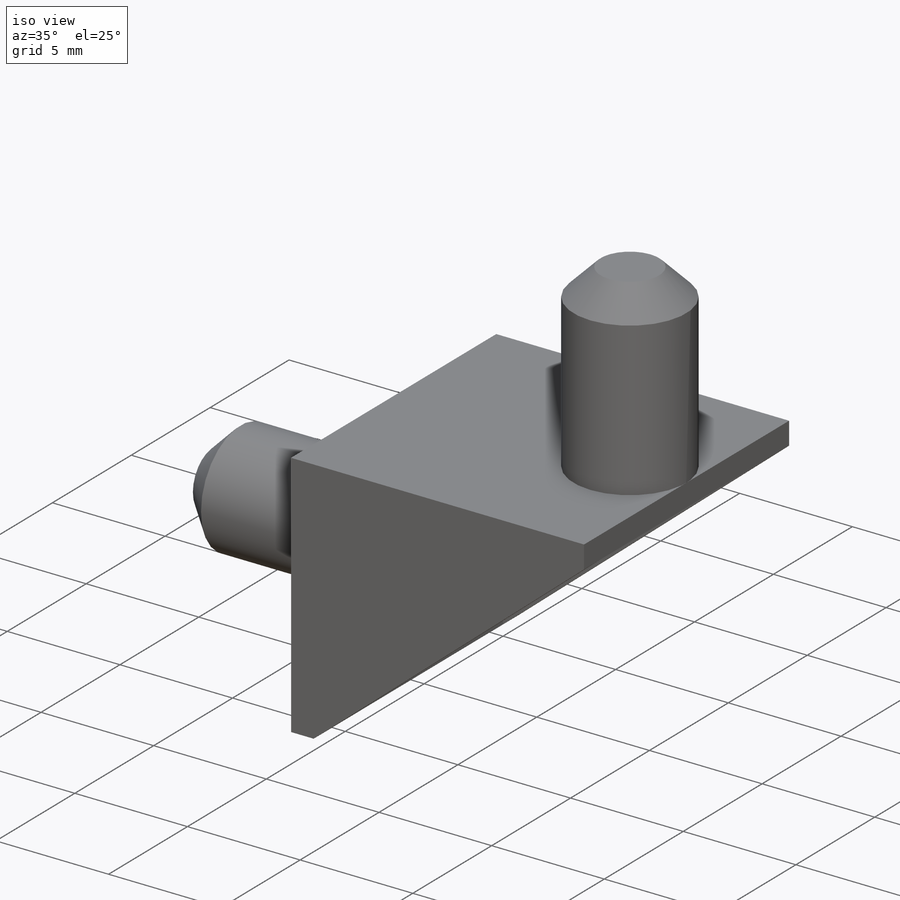
[diagram: iso view]
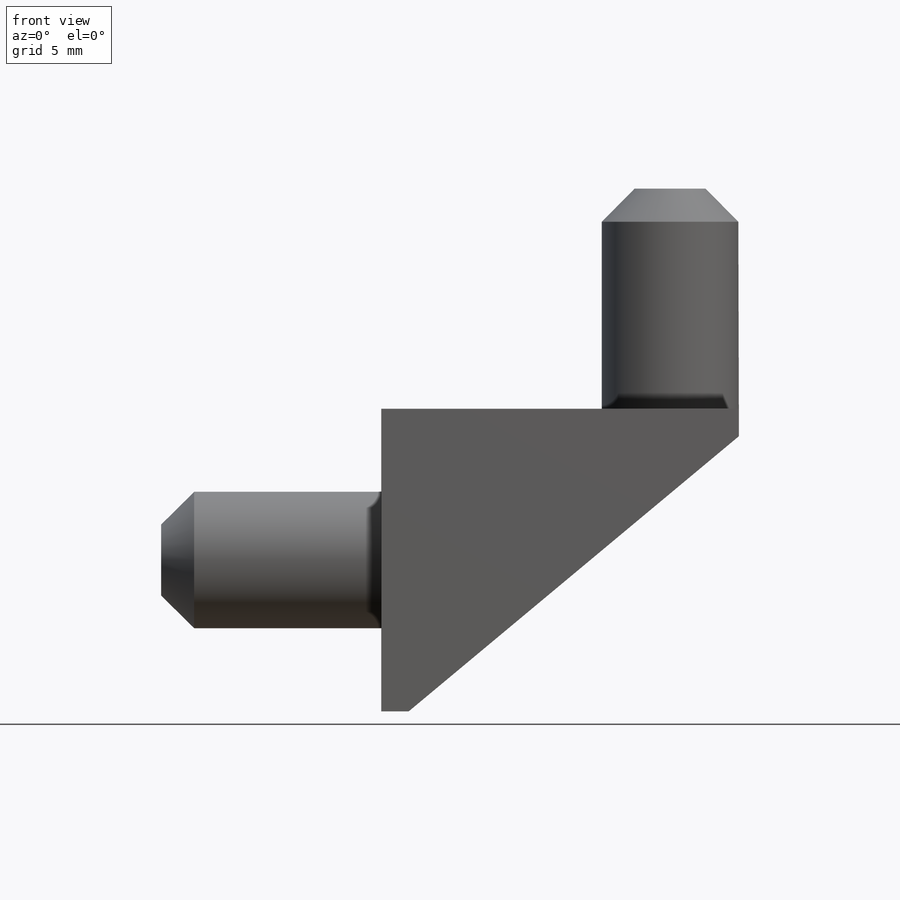
[diagram: front view]
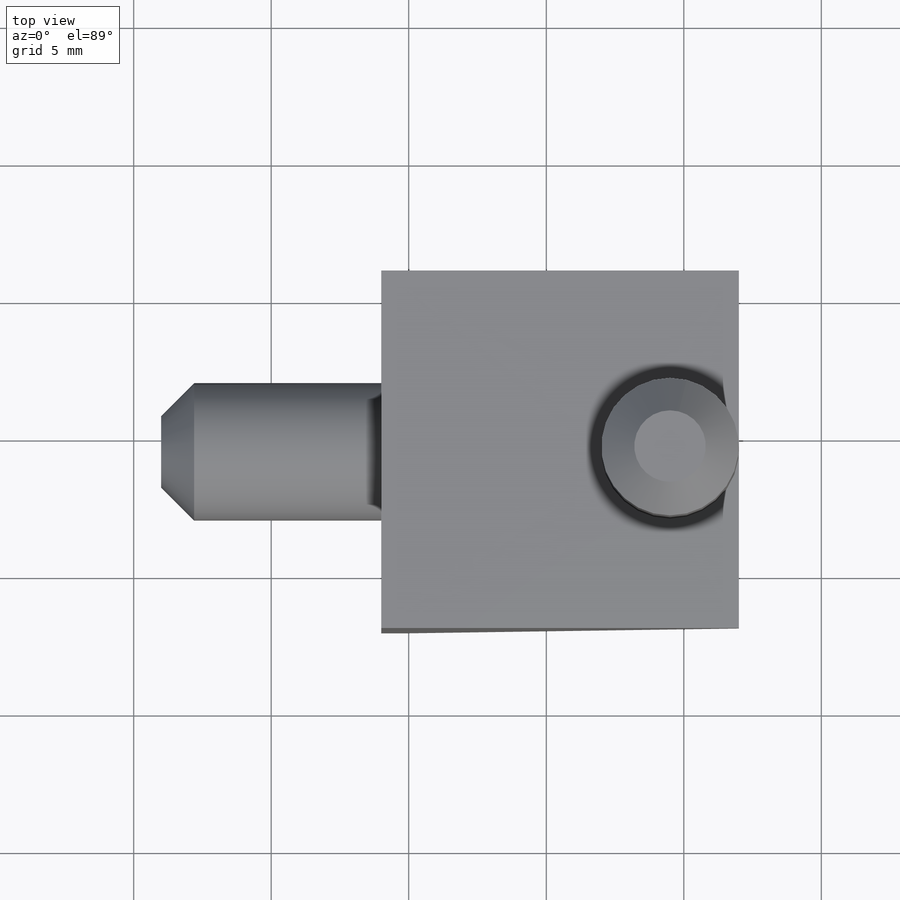
[diagram: top view]
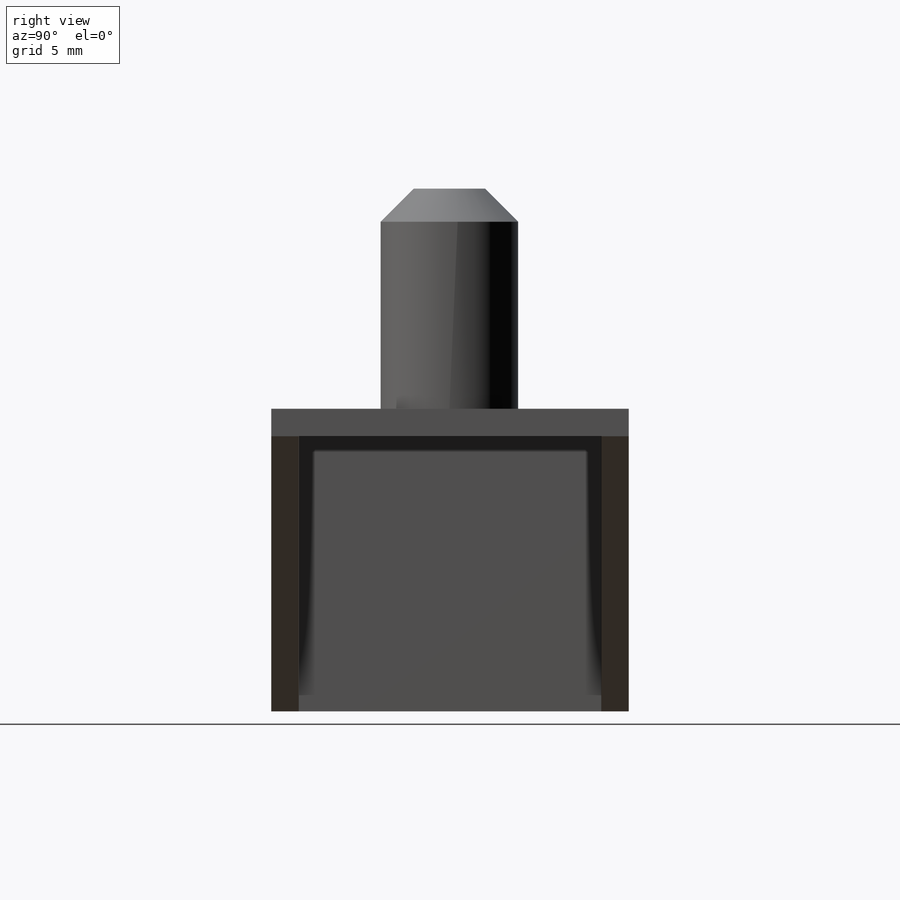
[diagram: right view]
SOLIDWORKS PART (.sldprt)
format: sldprt  version: not decoded by parser v0  size: 174,080 bytes
history: native  units: mm
features: sketch x6, extrude x6, chamfer x2, material x1 (+12 scaffold rows collapsed)
feature tree (27):
  scaffold x12  (default folders/planes/origin — collapsed)
  material  "Material <not specified>"
  sketch  "Sketch1"  dims[D1=12.0mm D2=11.0mm]
  extrude  "Boss-Extrude1"  Depth=1mm
  sketch  "Sketch2"  dims[D1=11.0mm]
  extrude  "Boss-Extrude2"  Depth=1mm
  sketch  "Sketch3"  dims[D1=~1.413235mm]
  extrude  "Boss-Extrude3"  Depth=8mm
  chamfer  "Chamfer1"  Distance=1.2mm Angle=45deg
  sketch  "Sketch4"  dims[D1=2.5mm]
  extrude  "Boss-Extrude4"  Depth=8mm
  chamfer  "Chamfer2"  Distance=1.2mm Angle=45deg
  sketch  "Sketch5"
  extrude  "Boss-Extrude5"  Depth=1mm
  sketch  "Sketch6"
  extrude  "Boss-Extrude6"  Depth=1mm
decode coverage: 12 of 14 modeling features carry decoded parameters
note: ~ marks probable driven/reference dimensions
note: suppression state not decoded; provenance and decode notes live in map.json
